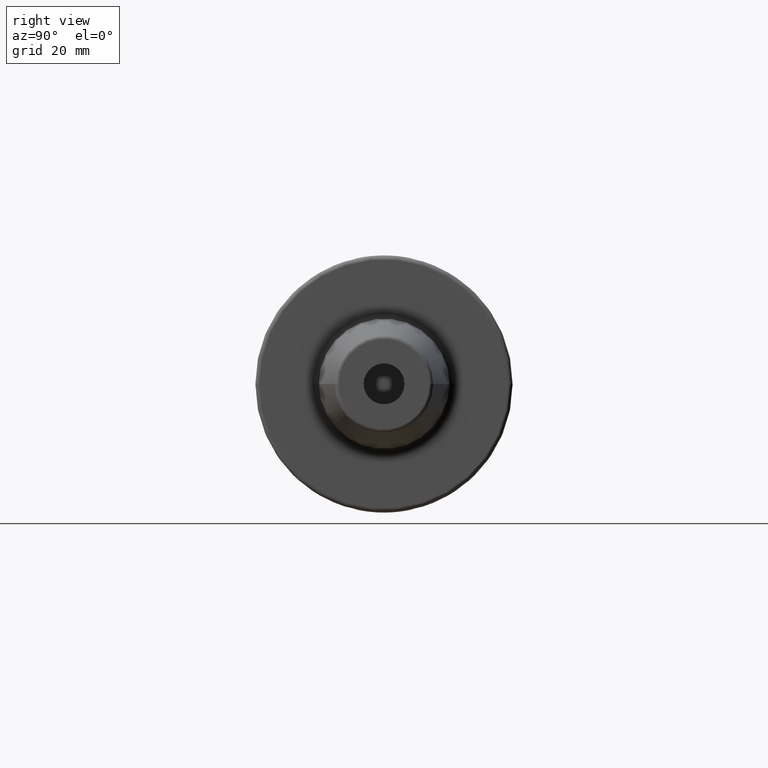
[diagram: clean part render]
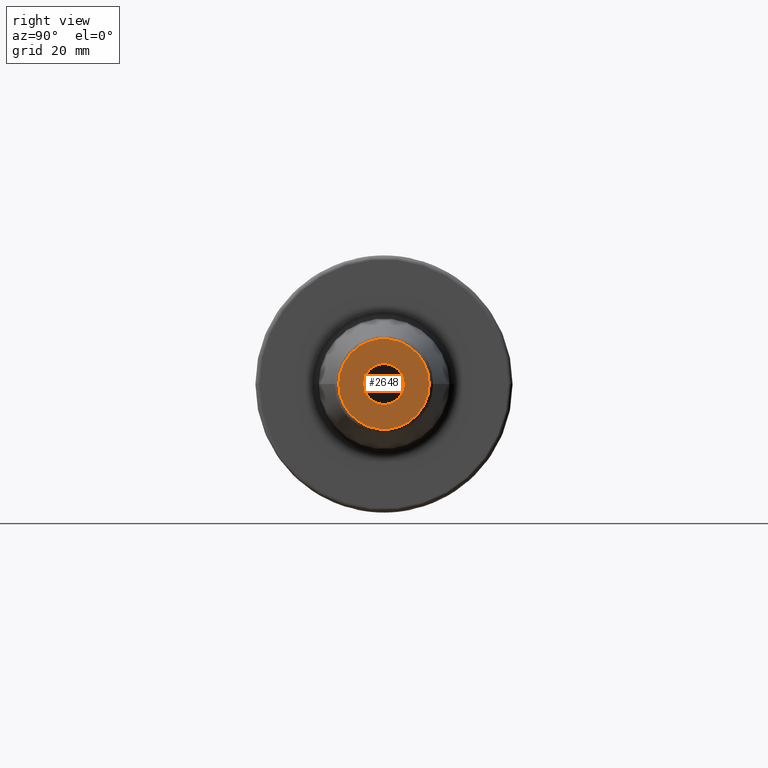
[diagram: same view with one face highlighted and labeled with its STEP entity id]
A machine part, right view. The second image highlights one B-rep face of the part: STEP entity #2648.
In plain terms, the highlighted planar face has unit normal (1, 0, 0).
Its self-contained STEP definition (entity closure, byte-faithful):
#912=CARTESIAN_POINT('',(9.E1,0.E0,0.E0));
#913=DIRECTION('',(-1.E0,0.E0,0.E0));
#914=DIRECTION('',(0.E0,1.E0,0.E0));
#915=AXIS2_PLACEMENT_3D('',#912,#913,#914);
#917=CARTESIAN_POINT('',(9.E1,0.E0,0.E0));
#918=DIRECTION('',(-1.E0,0.E0,0.E0));
#919=DIRECTION('',(0.E0,-1.E0,0.E0));
#920=AXIS2_PLACEMENT_3D('',#917,#918,#919);
#922=CARTESIAN_POINT('',(9.E1,0.E0,0.E0));
#923=DIRECTION('',(1.E0,0.E0,0.E0));
#924=DIRECTION('',(0.E0,1.E0,0.E0));
#925=AXIS2_PLACEMENT_3D('',#922,#923,#924);
#927=CARTESIAN_POINT('',(9.E1,0.E0,0.E0));
#928=DIRECTION('',(1.E0,0.E0,0.E0));
#929=DIRECTION('',(0.E0,-1.E0,0.E0));
#930=AXIS2_PLACEMENT_3D('',#927,#928,#929);
#1397=CARTESIAN_POINT('',(9.E1,5.E0,0.E0));
#1398=VERTEX_POINT('',#1397);
#1399=CARTESIAN_POINT('',(9.E1,-5.E0,0.E0));
#1400=VERTEX_POINT('',#1399);
#1417=CARTESIAN_POINT('',(9.E1,1.107560950834E1,0.E0));
#1418=CARTESIAN_POINT('',(9.E1,-1.107560950834E1,0.E0));
#1419=VERTEX_POINT('',#1417);
#1420=VERTEX_POINT('',#1418);
#2633=CARTESIAN_POINT('',(9.E1,0.E0,0.E0));
#2634=DIRECTION('',(1.E0,0.E0,0.E0));
#2635=DIRECTION('',(0.E0,-1.E0,0.E0));
#2636=AXIS2_PLACEMENT_3D('',#2633,#2634,#2635);
#2637=PLANE('',#2636);
#2638=ORIENTED_EDGE('',*,*,#2600,.T.);
#2639=ORIENTED_EDGE('',*,*,#2615,.T.);
#2640=EDGE_LOOP('',(#2638,#2639));
#2641=FACE_OUTER_BOUND('',#2640,.F.);
#2643=ORIENTED_EDGE('',*,*,#2642,.T.);
#2645=ORIENTED_EDGE('',*,*,#2644,.T.);
#2646=EDGE_LOOP('',(#2643,#2645));
#2647=FACE_BOUND('',#2646,.F.);
#2648=ADVANCED_FACE('',(#2641,#2647),#2637,.T.);
#916=CIRCLE('',#915,1.107560950834E1);
#921=CIRCLE('',#920,1.107560950834E1);
#926=CIRCLE('',#925,5.E0);
#931=CIRCLE('',#930,5.E0);
#2600=EDGE_CURVE('',#1419,#1420,#916,.T.);
#2615=EDGE_CURVE('',#1420,#1419,#921,.T.);
#2642=EDGE_CURVE('',#1398,#1400,#926,.T.);
#2644=EDGE_CURVE('',#1400,#1398,#931,.T.);